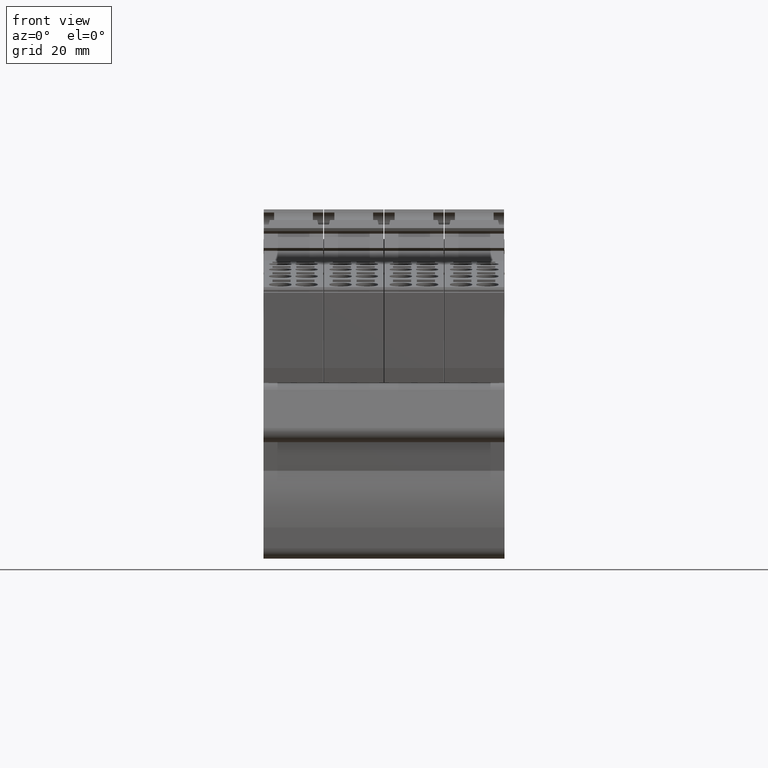
[diagram: clean part render]
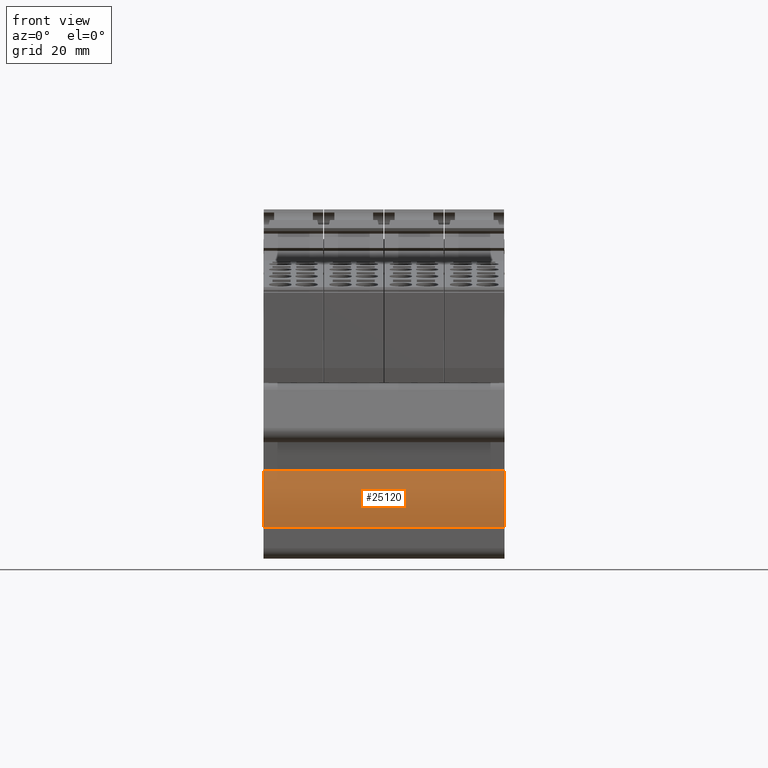
[diagram: same view with one face highlighted and labeled with its STEP entity id]
A machine part, front view. The second image highlights one B-rep face of the part: STEP entity #25120.
In plain terms, the highlighted cylindrical surface (partial cylindrical patch) has radius 30 mm, axis along (1, 0, 0).
Its self-contained STEP definition (entity closure, byte-faithful):
#3210=CARTESIAN_POINT('',(176.802689507967,-56.6770591260167,36.45));
#3220=VERTEX_POINT('',#3210);
#3250=CARTESIAN_POINT('',(206.774136155416,-57.9856407469761,36.45));
#3260=DIRECTION('',(0.,0.,1.));
#3270=DIRECTION('',(1.,-1.05193631583234E-14,0.));
#3280=AXIS2_PLACEMENT_3D('',#3250,#3260,#3270);
#3290=CIRCLE('',#3280,29.9999999999933);
#3300=CARTESIAN_POINT('',(179.617847465003,-45.2366806104568,36.45));
#3310=VERTEX_POINT('',#3300);
#3320=EDGE_CURVE('',#3310,#3220,#3290,.T.);
#7430=CARTESIAN_POINT('',(179.617847465003,-45.2366806104568,-12.15));
#7440=VERTEX_POINT('',#7430);
#7470=CARTESIAN_POINT('',(206.774136155416,-57.9856407469761,-12.15));
#7480=DIRECTION('',(0.,0.,1.));
#7490=DIRECTION('',(1.,-1.05193631583234E-14,0.));
#7500=AXIS2_PLACEMENT_3D('',#7470,#7480,#7490);
#7510=CIRCLE('',#7500,29.9999999999933);
#7520=CARTESIAN_POINT('',(176.802689507967,-56.6770591260167,-12.15));
#7530=VERTEX_POINT('',#7520);
#7540=EDGE_CURVE('',#7440,#7530,#7510,.T.);
#19280=CARTESIAN_POINT('',(179.617847465003,-45.2366806104568,
6.14999999999999));
#19290=DIRECTION('',(0.,0.,1.));
#19300=VECTOR('',#19290,1.);
#19310=LINE('',#19280,#19300);
#19320=EDGE_CURVE('',#7440,#3310,#19310,.T.);
#24960=CARTESIAN_POINT('',(206.774136155416,-57.9856407469761,
6.14999999999999));
#24970=DIRECTION('',(0.,0.,1.));
#24980=DIRECTION('',(1.,-1.05193631583234E-14,0.));
#24990=AXIS2_PLACEMENT_3D('',#24960,#24970,#24980);
#25000=CYLINDRICAL_SURFACE('',#24990,29.9999999999933);
#25010=ORIENTED_EDGE('',*,*,#7540,.T.);
#25020=ORIENTED_EDGE('',*,*,#19320,.F.);
#25030=ORIENTED_EDGE('',*,*,#3320,.F.);
#25040=CARTESIAN_POINT('',(176.802689507967,-56.6770591260167,
6.14999999999999));
#25050=DIRECTION('',(0.,0.,1.));
#25060=VECTOR('',#25050,1.);
#25070=LINE('',#25040,#25060);
#25080=EDGE_CURVE('',#7530,#3220,#25070,.T.);
#25090=ORIENTED_EDGE('',*,*,#25080,.T.);
#25100=EDGE_LOOP('',(#25090,#25030,#25020,#25010));
#25110=FACE_OUTER_BOUND('',#25100,.T.);
#25120=ADVANCED_FACE('',(#25110),#25000,.T.);